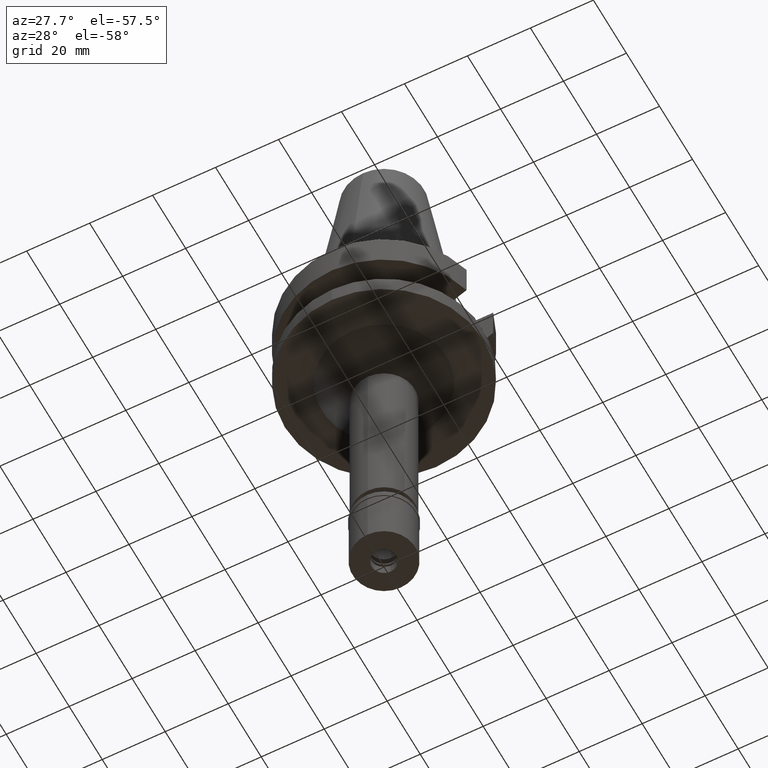
[diagram: clean part render]
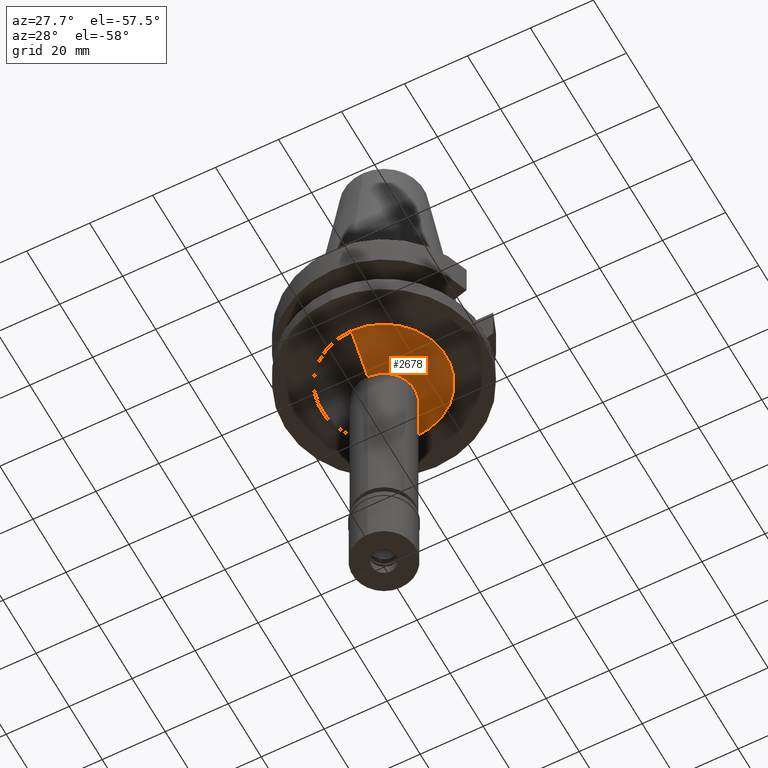
[diagram: same view with one face highlighted and labeled with its STEP entity id]
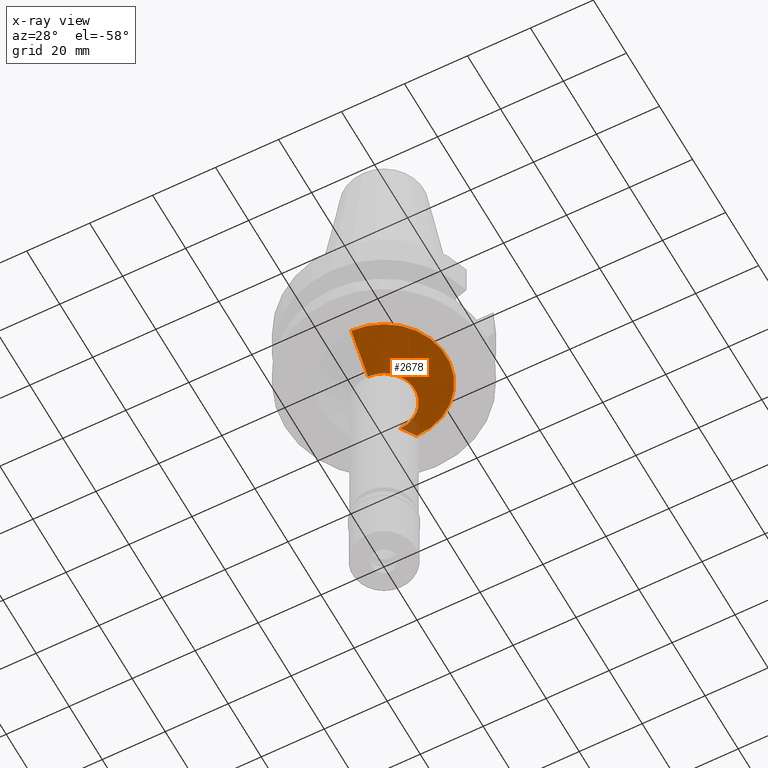
[diagram: x-ray of the same camera — body ghosted, the highlighted face saturated]
A machine part, auxiliary view. The second image highlights one B-rep face of the part: STEP entity #2678.
The next image is the same camera in x-ray: the body ghosted, the highlighted face saturated — about 3% of this face is hidden behind the body in this view.
In plain terms, the highlighted conical surface has half-angle 45 deg.
Its self-contained STEP definition (entity closure, byte-faithful):
#27 = FACE_OUTER_BOUND ( 'NONE', #2537, .T. ) ;
#41 = VERTEX_POINT ( 'NONE', #1624 ) ;
#81 = CARTESIAN_POINT ( 'NONE',  ( 0.0000000000000000000, 0.0000000000000000000, -27.00000000000000000 ) ) ;
#586 = ORIENTED_EDGE ( 'NONE', *, *, #2080, .F. ) ;
#743 = DIRECTION ( 'NONE',  ( 0.0000000000000000000, -0.7071067811865474617, -0.7071067811865474617 ) ) ;
#779 = CARTESIAN_POINT ( 'NONE',  ( 0.0000000000000000000, -19.75000000000000000, -27.00000000000000000 ) ) ;
#883 = CARTESIAN_POINT ( 'NONE',  ( 0.0000000000000000000, 0.0000000000000000000, -37.00000000000000000 ) ) ;
#902 = DIRECTION ( 'NONE',  ( 0.0000000000000000000, 0.0000000000000000000, -1.000000000000000000 ) ) ;
#1060 = DIRECTION ( 'NONE',  ( 0.0000000000000000000, 1.000000000000000000, 0.0000000000000000000 ) ) ;
#1076 = EDGE_CURVE ( 'NONE', #41, #1832, #1730, .T. ) ;
#1085 = CONICAL_SURFACE ( 'NONE', #2044, 14.75000000000000000, 0.7853981633972997312 ) ;
#1142 = VERTEX_POINT ( 'NONE', #1924 ) ;
#1145 = CIRCLE ( 'NONE', #1332, 19.75000000000000000 ) ;
#1164 = VECTOR ( 'NONE', #1539, 1000.000000000000114 ) ;
#1177 = VECTOR ( 'NONE', #743, 1000.000000000000114 ) ;
#1207 = DIRECTION ( 'NONE',  ( 0.0000000000000000000, 1.000000000000000000, 0.0000000000000000000 ) ) ;
#1241 = CARTESIAN_POINT ( 'NONE',  ( 0.0000000000000000000, 19.75000000000000000, -27.00000000000000000 ) ) ;
#1289 = DIRECTION ( 'NONE',  ( 0.0000000000000000000, 0.0000000000000000000, -1.000000000000000000 ) ) ;
#1332 = AXIS2_PLACEMENT_3D ( 'NONE', #81, #1289, #1060 ) ;
#1539 = DIRECTION ( 'NONE',  ( 0.0000000000000000000, 0.7071067811865474617, -0.7071067811865474617 ) ) ;
#1624 = CARTESIAN_POINT ( 'NONE',  ( 0.0000000000000000000, 19.75000000000000000, -27.00000000000000000 ) ) ;
#1661 = CIRCLE ( 'NONE', #2820, 9.750000000000000000 ) ;
#1730 = LINE ( 'NONE', #1241, #1177 ) ;
#1812 = ORIENTED_EDGE ( 'NONE', *, *, #1076, .F. ) ;
#1832 = VERTEX_POINT ( 'NONE', #2271 ) ;
#1899 = DIRECTION ( 'NONE',  ( 0.0000000000000000000, 1.000000000000000000, 0.0000000000000000000 ) ) ;
#1913 = CARTESIAN_POINT ( 'NONE',  ( 0.0000000000000000000, 0.0000000000000000000, -32.00000000000000000 ) ) ;
#1924 = CARTESIAN_POINT ( 'NONE',  ( 0.0000000000000000000, -19.75000000000000000, -27.00000000000000000 ) ) ;
#2044 = AXIS2_PLACEMENT_3D ( 'NONE', #1913, #2173, #1207 ) ;
#2080 = EDGE_CURVE ( 'NONE', #1832, #2252, #1661, .T. ) ;
#2105 = ORIENTED_EDGE ( 'NONE', *, *, #2267, .T. ) ;
#2173 = DIRECTION ( 'NONE',  ( 0.0000000000000000000, 0.0000000000000000000, 1.000000000000000000 ) ) ;
#2252 = VERTEX_POINT ( 'NONE', #3000 ) ;
#2267 = EDGE_CURVE ( 'NONE', #1142, #2252, #2940, .T. ) ;
#2271 = CARTESIAN_POINT ( 'NONE',  ( 0.0000000000000000000, 9.750000000000000000, -37.00000000000000000 ) ) ;
#2531 = ORIENTED_EDGE ( 'NONE', *, *, #2888, .T. ) ;
#2537 = EDGE_LOOP ( 'NONE', ( #2531, #2105, #586, #1812 ) ) ;
#2678 = ADVANCED_FACE ( 'NONE', ( #27 ), #1085, .T. ) ;
#2820 = AXIS2_PLACEMENT_3D ( 'NONE', #883, #902, #1899 ) ;
#2888 = EDGE_CURVE ( 'NONE', #41, #1142, #1145, .T. ) ;
#2940 = LINE ( 'NONE', #779, #1164 ) ;
#3000 = CARTESIAN_POINT ( 'NONE',  ( 0.0000000000000000000, -9.750000000000000000, -37.00000000000000000 ) ) ;